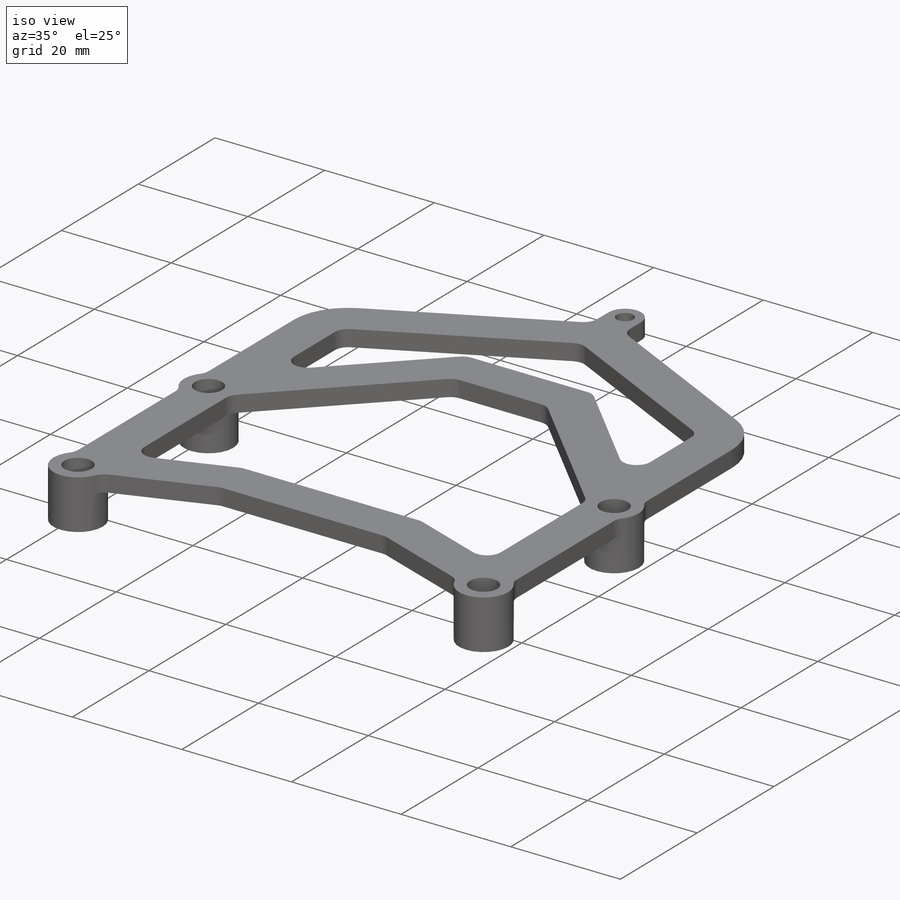
[diagram: iso view]
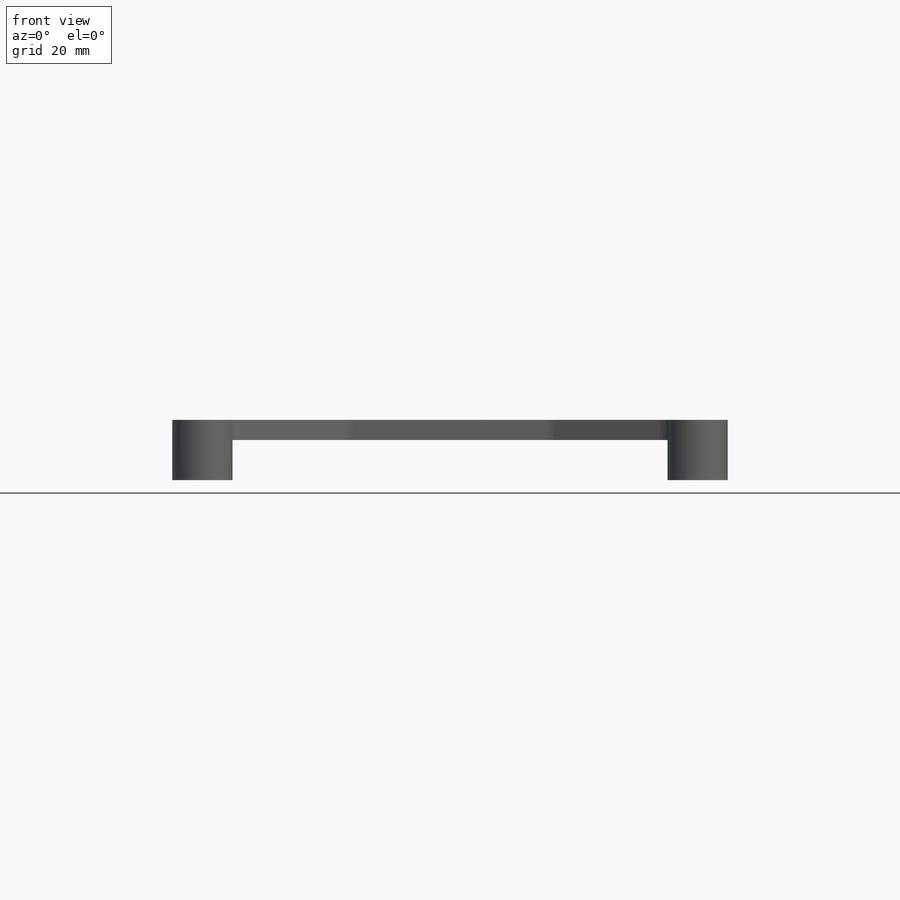
[diagram: front view]
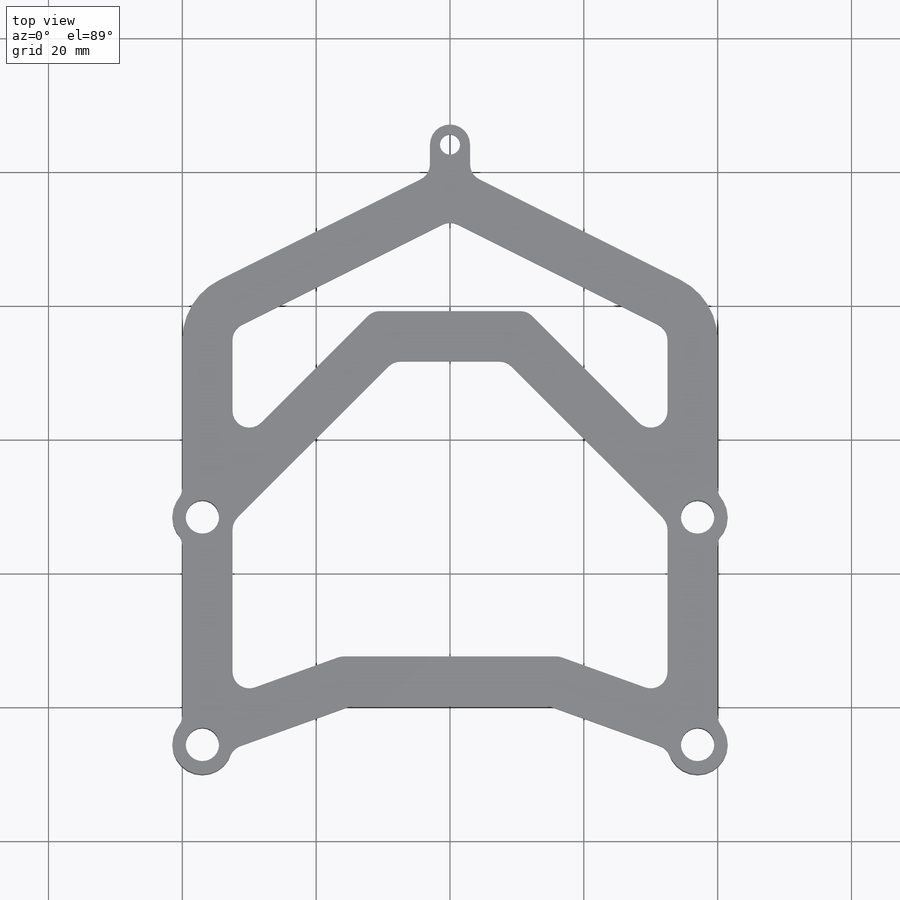
[diagram: top view]
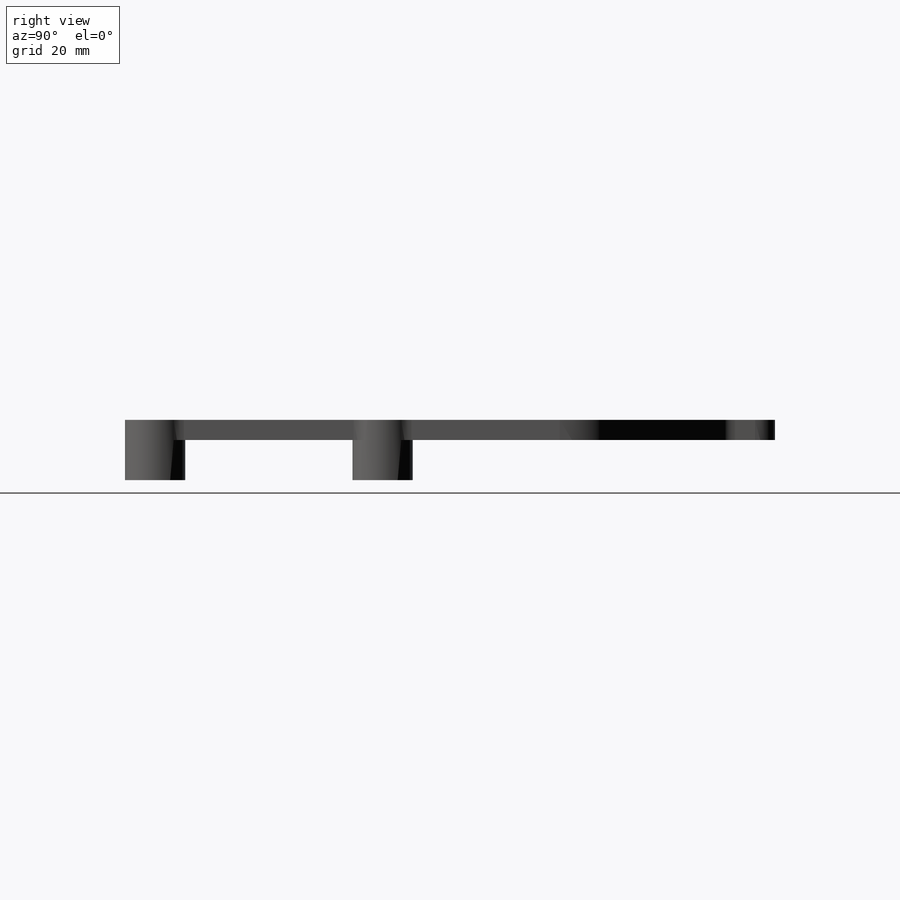
[diagram: right view]
SOLIDWORKS PART (.sldprt)
format: sldprt  version: not decoded by parser v0  size: 373,760 bytes
history: native  units: mm
features: sketch x3, extrude x2, fillet x2, material x1, cut_extrude x1, mirror x1 (+12 scaffold rows collapsed)
feature tree (22):
  scaffold x12  (default folders/planes/origin — collapsed)
  material  "Delrin 2700 NC010, Low Viscosity Acetal Copolymer (SS)"
  sketch  "Sketch1"  dims[c1.D1=9.0mm c1.D6=9.0mm c1.D9=5.0mm c1.D10=6.0mm c1.D11=3.0mm c2.D1=40.0mm c2.D2=9.0mm c2.D3=15.0mm c2.D4=70.0mm c2.D5=90.0mm c2.D7=2.0mm c2.D8=34.0mm c2.D9=5.0mm c3.D7=37.0mm]
  extrude  "Boss-Extrude1"  Depth=3mm
  sketch  "Sketch3"  dims[c1.D2=~39.097312mm c2.D2=45.0deg c2.D3=10.0mm c2.D1=7.5mm c2.D4=3.75mm c2.D5=3.75mm]
  cut_extrude  "Cut-Extrude2"  [1 undecoded]
  fillet  "Fillet2"  Radius=10mm
  mirror  "Mirror1"
  fillet  "Fillet3"  Radius=2.5mm
  sketch  "Sketch4"
  extrude  "Boss-Extrude2"  Depth=6mm
decode coverage: 6 of 9 modeling features carry decoded parameters
note: ~ marks probable driven/reference dimensions
note: 1 parameter value undecoded
note: suppression state not decoded; provenance and decode notes live in map.json
